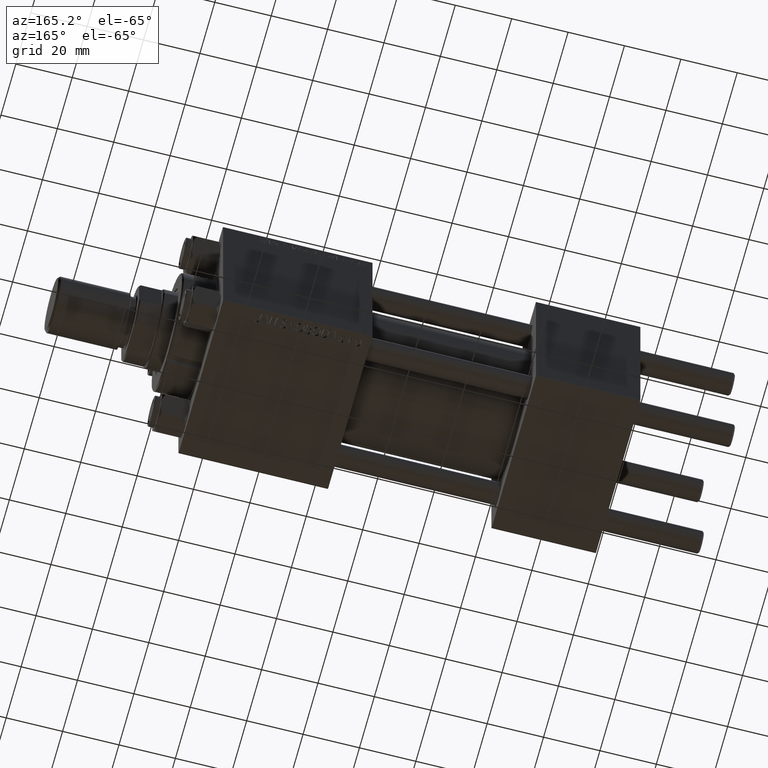
[diagram: clean part render]
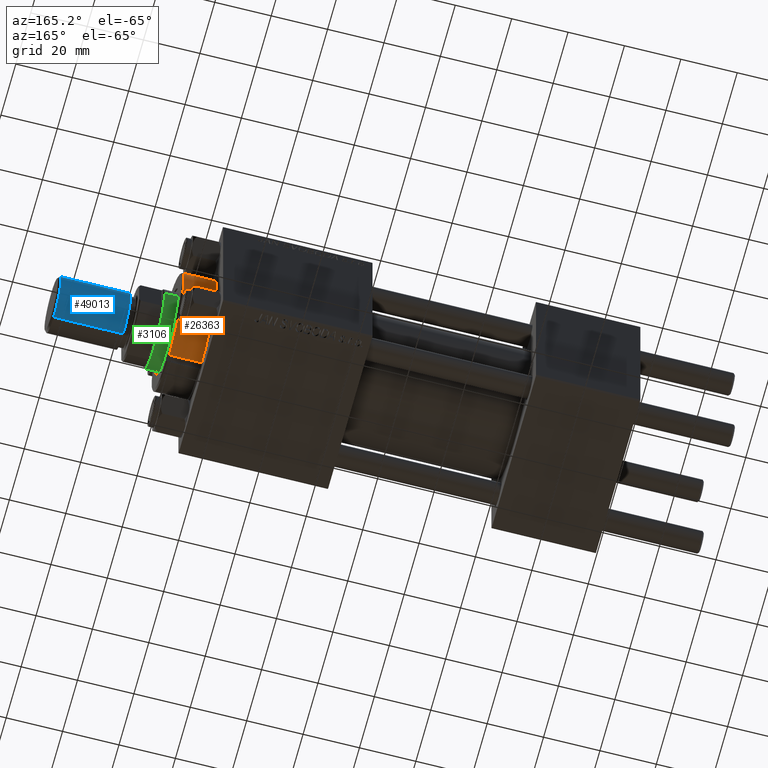
[diagram: same view with three faces highlighted in distinct colors, each labeled with its STEP entity id]
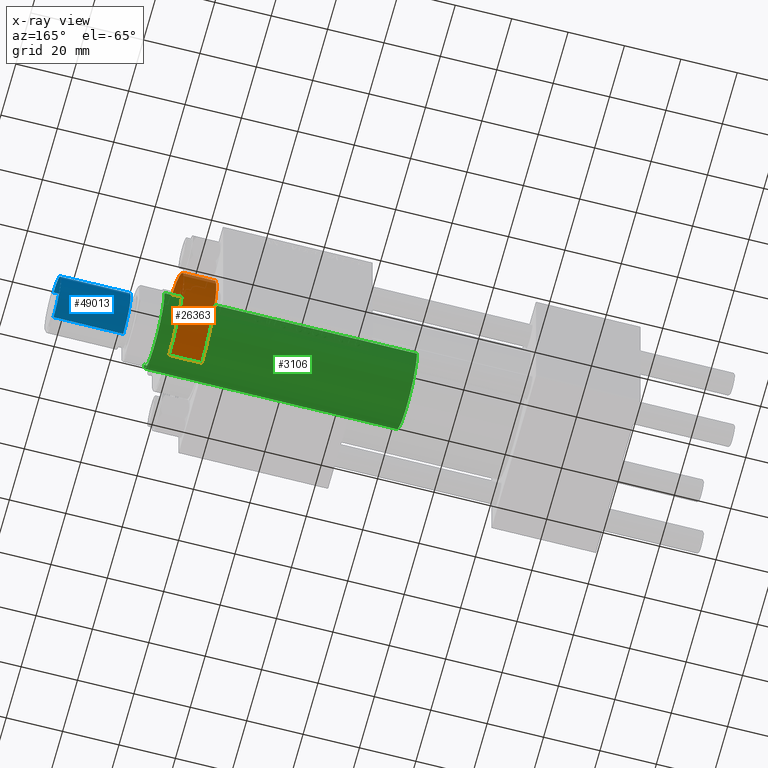
[diagram: x-ray of the same camera — body ghosted, the three highlighted faces saturated]
A machine part, auxiliary view with three faces highlighted in distinct colors.
The next image is the same camera in x-ray (body ghosted, the three faces saturated) — at least one of them is partly hidden behind the body in this view.
Their STEP definitions:

[orange] entity #26363 — the highlighted cylindrical surface (partial cylindrical patch) has radius 21 mm, axis along (-1, -0, 0).
#475 = CARTESIAN_POINT ( 'NONE',  ( 20.96385542168674831, 1.231570484631385076, 28.69999999999999929 ) ) ;
#1040 = DIRECTION ( 'NONE',  ( -1.000000000000000000, 0.000000000000000000, 0.000000000000000000 ) ) ;
#1921 = CARTESIAN_POINT ( 'NONE',  ( 20.96385542168674831, 1.231570484631384410, 32.20000000000000284 ) ) ;
#2190 = VERTEX_POINT ( 'NONE', #475 ) ;
#2247 = CIRCLE ( 'NONE', #9589, 21.00000000000000000 ) ;
#2431 = VERTEX_POINT ( 'NONE', #42391 ) ;
#6916 = CARTESIAN_POINT ( 'NONE',  ( 20.96385542168674831, 1.231570484631384188, 40.19999999999998863 ) ) ;
#8256 = EDGE_CURVE ( 'NONE', #49976, #2190, #9604, .T. ) ;
#9507 = CARTESIAN_POINT ( 'NONE',  ( -20.96385542168674831, 1.231570484631384410, 32.20000000000000284 ) ) ;
#9589 = AXIS2_PLACEMENT_3D ( 'NONE', #33244, #26239, #25059 ) ;
#9604 = LINE ( 'NONE', #1921, #37345 ) ;
#13162 = DIRECTION ( 'NONE',  ( 0.000000000000000000, 0.000000000000000000, -1.000000000000000000 ) ) ;
#13276 = AXIS2_PLACEMENT_3D ( 'NONE', #24073, #36353, #1040 ) ;
#17188 = DIRECTION ( 'NONE',  ( 0.000000000000000000, 0.000000000000000000, -1.000000000000000000 ) ) ;
#17420 = DIRECTION ( 'NONE',  ( -0.000000000000000000, -0.000000000000000000, 1.000000000000000000 ) ) ;
#17792 = VECTOR ( 'NONE', #17420, 1000.000000000000000 ) ;
#21753 = ORIENTED_EDGE ( 'NONE', *, *, #46544, .T. ) ;
#22781 = ORIENTED_EDGE ( 'NONE', *, *, #45948, .T. ) ;
#24073 = CARTESIAN_POINT ( 'NONE',  ( 0.000000000000000000, 0.000000000000000000, 40.70000000000000284 ) ) ;
#25059 = DIRECTION ( 'NONE',  ( 1.000000000000000000, 0.000000000000000000, 0.000000000000000000 ) ) ;
#26239 = DIRECTION ( 'NONE',  ( 0.000000000000000000, 0.000000000000000000, 1.000000000000000000 ) ) ;
#26363 = ADVANCED_FACE ( 'NONE', ( #44535 ), #39674, .T. ) ;
#26635 = CIRCLE ( 'NONE', #38885, 21.00000000000000000 ) ;
#26826 = ORIENTED_EDGE ( 'NONE', *, *, #49855, .T. ) ;
#28677 = LINE ( 'NONE', #9507, #17792 ) ;
#29218 = DIRECTION ( 'NONE',  ( 1.000000000000000000, 0.000000000000000000, 0.000000000000000000 ) ) ;
#31036 = EDGE_LOOP ( 'NONE', ( #22781, #26826, #21753, #48948 ) ) ;
#33244 = CARTESIAN_POINT ( 'NONE',  ( 0.000000000000000000, 0.000000000000000000, 28.69999999999999929 ) ) ;
#36353 = DIRECTION ( 'NONE',  ( -0.000000000000000000, -0.000000000000000000, -1.000000000000000000 ) ) ;
#37345 = VECTOR ( 'NONE', #13162, 1000.000000000000000 ) ;
#37405 = CARTESIAN_POINT ( 'NONE',  ( 0.000000000000000000, 0.000000000000000000, 40.19999999999998863 ) ) ;
#38885 = AXIS2_PLACEMENT_3D ( 'NONE', #37405, #17188, #29218 ) ;
#39674 = CYLINDRICAL_SURFACE ( 'NONE', #13276, 21.00000000000000000 ) ;
#42391 = CARTESIAN_POINT ( 'NONE',  ( -20.96385542168674831, 1.231570484631392626, 28.69999999999999929 ) ) ;
#43267 = VERTEX_POINT ( 'NONE', #46851 ) ;
#44535 = FACE_OUTER_BOUND ( 'NONE', #31036, .T. ) ;
#45948 = EDGE_CURVE ( 'NONE', #2190, #2431, #2247, .T. ) ;
#46544 = EDGE_CURVE ( 'NONE', #43267, #49976, #26635, .T. ) ;
#46851 = CARTESIAN_POINT ( 'NONE',  ( -20.96385542168674831, 1.231570484631384410, 40.19999999999998863 ) ) ;
#48948 = ORIENTED_EDGE ( 'NONE', *, *, #8256, .T. ) ;
#49855 = EDGE_CURVE ( 'NONE', #2431, #43267, #28677, .T. ) ;
#49976 = VERTEX_POINT ( 'NONE', #6916 ) ;

[blue] entity #49013 — the highlighted cylindrical surface (edge-blend (fillet) strip) has radius 10 mm, axis along (1, -0, 0).
#1066 = DIRECTION ( 'NONE',  ( 0.000000000000000000, 0.000000000000000000, 1.000000000000000000 ) ) ;
#1412 = VERTEX_POINT ( 'NONE', #14016 ) ;
#1494 = VECTOR ( 'NONE', #26490, 1000.000000000000000 ) ;
#1739 = ORIENTED_EDGE ( 'NONE', *, *, #27964, .F. ) ;
#4163 = EDGE_LOOP ( 'NONE', ( #1739, #34659, #12579, #22442 ) ) ;
#6742 = DIRECTION ( 'NONE',  ( -0.000000000000000000, -0.000000000000000000, -1.000000000000000000 ) ) ;
#7642 = CIRCLE ( 'NONE', #36216, 10.00000000000000000 ) ;
#8936 = VERTEX_POINT ( 'NONE', #47191 ) ;
#11394 = CARTESIAN_POINT ( 'NONE',  ( -10.00000000000000000, 0.000000000000000000, 25.50000000000000000 ) ) ;
#11418 = DIRECTION ( 'NONE',  ( -1.000000000000000000, 0.000000000000000000, 0.000000000000000000 ) ) ;
#12154 = EDGE_CURVE ( 'NONE', #50549, #1412, #30839, .T. ) ;
#12579 = ORIENTED_EDGE ( 'NONE', *, *, #36973, .T. ) ;
#13655 = AXIS2_PLACEMENT_3D ( 'NONE', #42622, #38297, #11418 ) ;
#14016 = CARTESIAN_POINT ( 'NONE',  ( -10.00000000000000000, 0.000000000000000000, 0.8000000000000055955 ) ) ;
#14893 = CARTESIAN_POINT ( 'NONE',  ( 10.00000000000000000, 1.224646799147353256E-15, 25.50000000000000000 ) ) ;
#15755 = CYLINDRICAL_SURFACE ( 'NONE', #13655, 10.00000000000000000 ) ;
#16679 = DIRECTION ( 'NONE',  ( 1.000000000000000000, 0.000000000000000000, 0.000000000000000000 ) ) ;
#17445 = CIRCLE ( 'NONE', #38685, 10.00000000000000000 ) ;
#19087 = FACE_OUTER_BOUND ( 'NONE', #4163, .T. ) ;
#20525 = CARTESIAN_POINT ( 'NONE',  ( 10.00000000000000000, 1.224646799147353256E-15, 25.50000000000000000 ) ) ;
#21779 = DIRECTION ( 'NONE',  ( 1.000000000000000000, 0.000000000000000000, 0.000000000000000000 ) ) ;
#22442 = ORIENTED_EDGE ( 'NONE', *, *, #12154, .F. ) ;
#26490 = DIRECTION ( 'NONE',  ( -0.000000000000000000, -0.000000000000000000, -1.000000000000000000 ) ) ;
#27964 = EDGE_CURVE ( 'NONE', #48149, #50549, #17445, .T. ) ;
#29210 = CARTESIAN_POINT ( 'NONE',  ( 0.000000000000000000, 0.000000000000000000, 0.8000000000000055955 ) ) ;
#30734 = VECTOR ( 'NONE', #6742, 1000.000000000000000 ) ;
#30839 = LINE ( 'NONE', #11394, #1494 ) ;
#33554 = DIRECTION ( 'NONE',  ( -0.000000000000000000, -0.000000000000000000, 1.000000000000000000 ) ) ;
#34659 = ORIENTED_EDGE ( 'NONE', *, *, #43177, .T. ) ;
#36216 = AXIS2_PLACEMENT_3D ( 'NONE', #29210, #33554, #21779 ) ;
#36894 = CARTESIAN_POINT ( 'NONE',  ( 0.000000000000000000, 0.000000000000000000, 25.50000000000000000 ) ) ;
#36973 = EDGE_CURVE ( 'NONE', #8936, #1412, #7642, .T. ) ;
#37009 = LINE ( 'NONE', #14893, #30734 ) ;
#38297 = DIRECTION ( 'NONE',  ( -0.000000000000000000, -0.000000000000000000, -1.000000000000000000 ) ) ;
#38685 = AXIS2_PLACEMENT_3D ( 'NONE', #36894, #1066, #16679 ) ;
#42622 = CARTESIAN_POINT ( 'NONE',  ( 0.000000000000000000, 0.000000000000000000, 25.50000000000000000 ) ) ;
#43177 = EDGE_CURVE ( 'NONE', #48149, #8936, #37009, .T. ) ;
#47191 = CARTESIAN_POINT ( 'NONE',  ( 10.00000000000000000, 1.224646799147353256E-15, 0.8000000000000055955 ) ) ;
#48149 = VERTEX_POINT ( 'NONE', #20525 ) ;
#49013 = ADVANCED_FACE ( 'NONE', ( #19087 ), #15755, .T. ) ;
#50173 = CARTESIAN_POINT ( 'NONE',  ( -10.00000000000000000, 0.000000000000000000, 25.50000000000000000 ) ) ;
#50549 = VERTEX_POINT ( 'NONE', #50173 ) ;

[green] entity #3106 — the highlighted cylindrical surface (partial cylindrical patch) has radius 14 mm, axis along (-1, 0, 0).
#494 = CARTESIAN_POINT ( 'NONE',  ( 0.000000000000000000, 0.000000000000000000, 38.00000000000000000 ) ) ;
#876 = CARTESIAN_POINT ( 'NONE',  ( -14.00000000000000178, 0.000000000000000000, 38.00000000000000000 ) ) ;
#2757 = AXIS2_PLACEMENT_3D ( 'NONE', #43142, #31132, #7363 ) ;
#3106 = ADVANCED_FACE ( 'NONE', ( #11191 ), #15268, .T. ) ;
#6267 = VERTEX_POINT ( 'NONE', #28575 ) ;
#7363 = DIRECTION ( 'NONE',  ( 1.000000000000000000, 0.000000000000000000, 0.000000000000000000 ) ) ;
#7944 = DIRECTION ( 'NONE',  ( 1.000000000000000000, 0.000000000000000000, 0.000000000000000000 ) ) ;
#8311 = VERTEX_POINT ( 'NONE', #876 ) ;
#11191 = FACE_OUTER_BOUND ( 'NONE', #47881, .T. ) ;
#11569 = LINE ( 'NONE', #23847, #11920 ) ;
#11920 = VECTOR ( 'NONE', #34854, 1000.000000000000000 ) ;
#12034 = CARTESIAN_POINT ( 'NONE',  ( 14.00000000000000178, 1.714505518806294441E-15, 128.0000000000000000 ) ) ;
#12223 = ORIENTED_EDGE ( 'NONE', *, *, #32502, .T. ) ;
#13368 = CIRCLE ( 'NONE', #2757, 14.00000000000000178 ) ;
#14458 = CIRCLE ( 'NONE', #49579, 14.00000000000000178 ) ;
#15268 = CYLINDRICAL_SURFACE ( 'NONE', #47891, 14.00000000000000178 ) ;
#17713 = VECTOR ( 'NONE', #50143, 1000.000000000000000 ) ;
#22709 = CARTESIAN_POINT ( 'NONE',  ( 0.000000000000000000, 0.000000000000000000, 128.0000000000000000 ) ) ;
#23847 = CARTESIAN_POINT ( 'NONE',  ( -14.00000000000000178, 0.000000000000000000, 128.0000000000000000 ) ) ;
#27373 = CARTESIAN_POINT ( 'NONE',  ( 14.00000000000000178, 1.714505518806294441E-15, 127.5000000000000853 ) ) ;
#28575 = CARTESIAN_POINT ( 'NONE',  ( -14.00000000000000178, 0.000000000000000000, 127.5000000000000853 ) ) ;
#28878 = VERTEX_POINT ( 'NONE', #32548 ) ;
#30724 = LINE ( 'NONE', #12034, #17713 ) ;
#31132 = DIRECTION ( 'NONE',  ( 0.000000000000000000, 0.000000000000000000, -1.000000000000000000 ) ) ;
#32502 = EDGE_CURVE ( 'NONE', #6267, #38312, #13368, .T. ) ;
#32548 = CARTESIAN_POINT ( 'NONE',  ( 14.00000000000000178, 1.714505518806294441E-15, 38.00000000000000000 ) ) ;
#32945 = ORIENTED_EDGE ( 'NONE', *, *, #48386, .T. ) ;
#34854 = DIRECTION ( 'NONE',  ( -0.000000000000000000, -0.000000000000000000, -1.000000000000000000 ) ) ;
#34977 = ORIENTED_EDGE ( 'NONE', *, *, #45906, .T. ) ;
#38312 = VERTEX_POINT ( 'NONE', #27373 ) ;
#38321 = DIRECTION ( 'NONE',  ( -1.000000000000000000, 0.000000000000000000, 0.000000000000000000 ) ) ;
#41300 = ORIENTED_EDGE ( 'NONE', *, *, #43360, .F. ) ;
#43142 = CARTESIAN_POINT ( 'NONE',  ( 0.000000000000000000, 0.000000000000000000, 127.5000000000000853 ) ) ;
#43360 = EDGE_CURVE ( 'NONE', #6267, #8311, #11569, .T. ) ;
#43717 = DIRECTION ( 'NONE',  ( 0.000000000000000000, 0.000000000000000000, 1.000000000000000000 ) ) ;
#45906 = EDGE_CURVE ( 'NONE', #28878, #8311, #14458, .T. ) ;
#47881 = EDGE_LOOP ( 'NONE', ( #12223, #32945, #34977, #41300 ) ) ;
#47891 = AXIS2_PLACEMENT_3D ( 'NONE', #22709, #50299, #38321 ) ;
#48386 = EDGE_CURVE ( 'NONE', #38312, #28878, #30724, .T. ) ;
#49579 = AXIS2_PLACEMENT_3D ( 'NONE', #494, #43717, #7944 ) ;
#50143 = DIRECTION ( 'NONE',  ( -0.000000000000000000, -0.000000000000000000, -1.000000000000000000 ) ) ;
#50299 = DIRECTION ( 'NONE',  ( -0.000000000000000000, -0.000000000000000000, -1.000000000000000000 ) ) ;